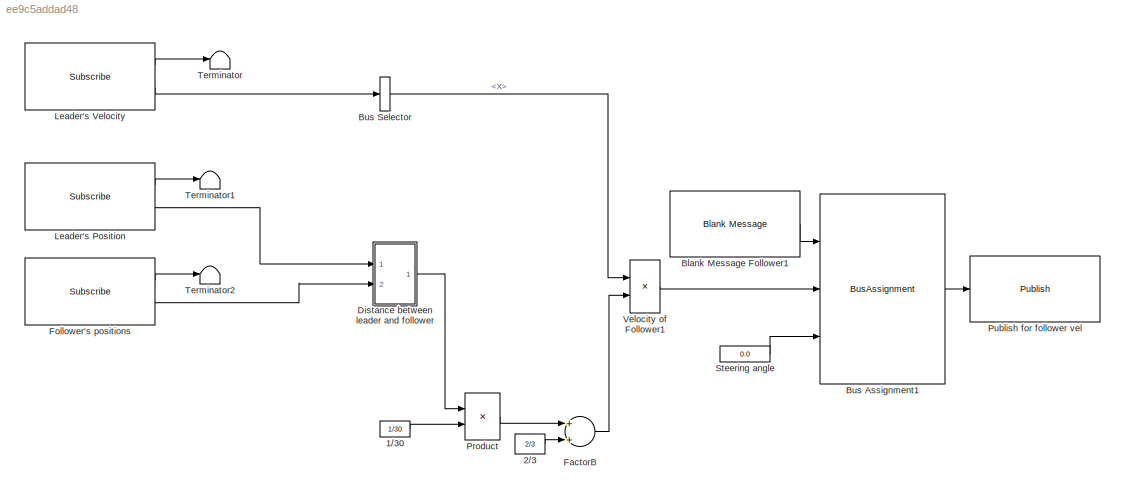
MODEL slx_ee9c5addad48
KIND model
CONFIG AbsTol = auto
CONFIG FixedStep = auto
CONFIG MaxStep = auto
CONFIG MinStep = auto
CONFIG RelTol = 1e-3
CONFIG SampleTimeConstraint = Unconstrained
CONFIG Solver = FixedStepAuto
CONFIG SolverMode = Auto
CONFIG SolverName = FixedStepAuto
CONFIG StartTime = 0.0
CONFIG StopTime = inf
BLOCK [Constant] 1//30
  Value = 1/30
BLOCK [Constant] 2//3
  Value = 2/3
BLOCK [Reference] Blank Message Follower1  REF=robotlib/Blank Message
  Ports = [0, 1]
  SourceBlock = robotlib/Blank Message
  SourceLibraryInfo = This block requires Robotics System Toolbox
  SourceType = ROS Blank Message
BLOCK [BusAssignment] Bus Assignment1
  AssignedSignals = Linear.X,Angular.Z
  Ports = [3, 1]
BLOCK [BusSelector] Bus Selector
  OutputSignals = Linear.X
  Ports = [1, 1]
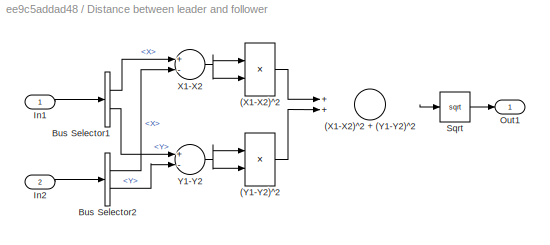
BLOCK [SubSystem] Distance between leader and follower
  Ports = [2, 1]
  RequestExecContextInheritance = off
  Variant = off
BLOCK [Product] Distance between leader and follower/(X1-X2)^2
  InputSameDT = off
  OutDataTypeStr = Inherit: Inherit via internal rule
  Ports = [2, 1]
  RndMeth = Floor
  SaturateOnIntegerOverflow = off
BLOCK [Sum] Distance between leader and follower/(X1-X2)^2 + (Y1-Y2)^2
  InputSameDT = off
  OutDataTypeStr = Inherit: Inherit via internal rule
  Ports = [2, 1]
  SaturateOnIntegerOverflow = off
BLOCK [Product] Distance between leader and follower/(Y1-Y2)^2
  InputSameDT = off
  OutDataTypeStr = Inherit: Inherit via internal rule
  Ports = [2, 1]
  RndMeth = Floor
  SaturateOnIntegerOverflow = off
BLOCK [BusSelector] Distance between leader and follower/Bus Selector1
  OutputSignals = Pose.Pose.Position.X,Pose.Pose.Position.Y
  Ports = [1, 2]
BLOCK [BusSelector] Distance between leader and follower/Bus Selector2
  OutputSignals = Pose.Pose.Position.X,Pose.Pose.Position.Y
  Ports = [1, 2]
BLOCK [Inport] Distance between leader and follower/In1
  IconDisplay = Port number
BLOCK [Inport] Distance between leader and follower/In2
  IconDisplay = Port number
  Port = 2
BLOCK [Outport] Distance between leader and follower/Out1
  IconDisplay = Port number
BLOCK [Sqrt] Distance between leader and follower/Sqrt
BLOCK [Sum] Distance between leader and follower/X1-X2
  InputSameDT = off
  Inputs = +-
  OutDataTypeStr = Inherit: Inherit via internal rule
  Ports = [2, 1]
  SaturateOnIntegerOverflow = off
BLOCK [Sum] Distance between leader and follower/Y1-Y2
  InputSameDT = off
  Inputs = +-
  OutDataTypeStr = Inherit: Inherit via internal rule
  Ports = [2, 1]
  SaturateOnIntegerOverflow = off
BLOCK [Sum] FactorB
  InputSameDT = off
  OutDataTypeStr = Inherit: Inherit via internal rule
  Ports = [2, 1]
  SaturateOnIntegerOverflow = off
BLOCK [Reference] Follower's positions  REF=robotlib/Subscribe
  Ports = [0, 2]
  SourceBlock = robotlib/Subscribe
  SourceLibraryInfo = This block requires Robotics System Toolbox
  SourceType = ROS Subscribe
BLOCK [Reference] Leader's Position  REF=robotlib/Subscribe
  Ports = [0, 2]
  SourceBlock = robotlib/Subscribe
  SourceLibraryInfo = This block requires Robotics System Toolbox
  SourceType = ROS Subscribe
BLOCK [Reference] Leader's Velocity  REF=robotlib/Subscribe
  Ports = [0, 2]
  SourceBlock = robotlib/Subscribe
  SourceLibraryInfo = This block requires Robotics System Toolbox
  SourceType = ROS Subscribe
BLOCK [Product] Product
  InputSameDT = off
  OutDataTypeStr = Inherit: Inherit via internal rule
  Ports = [2, 1]
  RndMeth = Floor
  SaturateOnIntegerOverflow = off
BLOCK [Reference] Publish for follower vel  REF=robotlib/Publish
  Ports = [1]
  SourceBlock = robotlib/Publish
  SourceLibraryInfo = This block requires Robotics System Toolbox
  SourceType = ROS Publish
BLOCK [Constant] Steering angle
  Value = 0.0
BLOCK [Terminator] Terminator
BLOCK [Terminator] Terminator1
BLOCK [Terminator] Terminator2
BLOCK [Product] Velocity of Follower1
  InputSameDT = off
  OutDataTypeStr = Inherit: Inherit via internal rule
  Ports = [2, 1]
  RndMeth = Floor
  SaturateOnIntegerOverflow = off
LINE 1//30:1 -> Product:2
LINE 2//3:1 -> FactorB:2
LINE Blank Message Follower1:1 -> Bus Assignment1:1
LINE Bus Assignment1:1 -> Publish for follower vel:1
LINE Bus Selector:1 -> Velocity of Follower1:1
LINE Distance between leader and follower/(X1-X2)^2 + (Y1-Y2)^2:1 -> Distance between leader and follower/Sqrt:1
LINE Distance between leader and follower/(X1-X2)^2:1 -> Distance between leader and follower/(X1-X2)^2 + (Y1-Y2)^2:1
LINE Distance between leader and follower/(Y1-Y2)^2:1 -> Distance between leader and follower/(X1-X2)^2 + (Y1-Y2)^2:2
LINE Distance between leader and follower/Bus Selector1:1 -> Distance between leader and follower/X1-X2:1
LINE Distance between leader and follower/Bus Selector1:2 -> Distance between leader and follower/Y1-Y2:1
LINE Distance between leader and follower/Bus Selector2:1 -> Distance between leader and follower/X1-X2:2
LINE Distance between leader and follower/Bus Selector2:2 -> Distance between leader and follower/Y1-Y2:2
LINE Distance between leader and follower/In1:1 -> Distance between leader and follower/Bus Selector1:1
LINE Distance between leader and follower/In2:1 -> Distance between leader and follower/Bus Selector2:1
LINE Distance between leader and follower/Sqrt:1 -> Distance between leader and follower/Out1:1
NET Distance between leader and follower/X1-X2:1 -> Distance between leader and follower/(X1-X2)^2:1, Distance between leader and follower/(X1-X2)^2:2
NET Distance between leader and follower/Y1-Y2:1 -> Distance between leader and follower/(Y1-Y2)^2:1, Distance between leader and follower/(Y1-Y2)^2:2
LINE Distance between leader and follower:1 -> Product:1
LINE FactorB:1 -> Velocity of Follower1:2
LINE Follower's positions:1 -> Terminator2:1
LINE Follower's positions:2 -> Distance between leader and follower:2
LINE Leader's Position:1 -> Terminator1:1
LINE Leader's Position:2 -> Distance between leader and follower:1
LINE Leader's Velocity:1 -> Terminator:1
LINE Leader's Velocity:2 -> Bus Selector:1
LINE Product:1 -> FactorB:1
LINE Steering angle:1 -> Bus Assignment1:3
LINE Velocity of Follower1:1 -> Bus Assignment1:2
note: NET lines group one-source signal fan-out (src -> all destinations, sorted); 1:1 wires keep LINE
